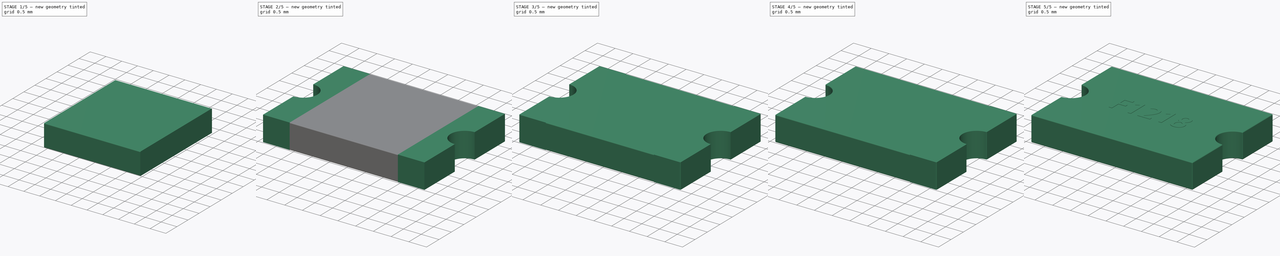
[diagram: build sequence overview — one tinted view per stage of 5, left to right]
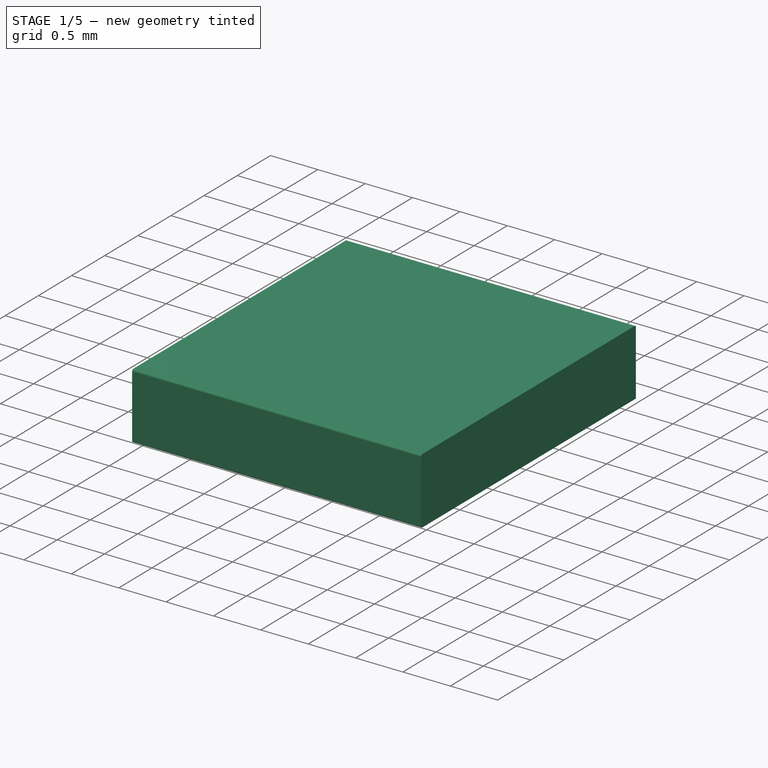
[diagram: stage 1 of 5 — iso view after this stage's code; geometry added in this stage tinted green]
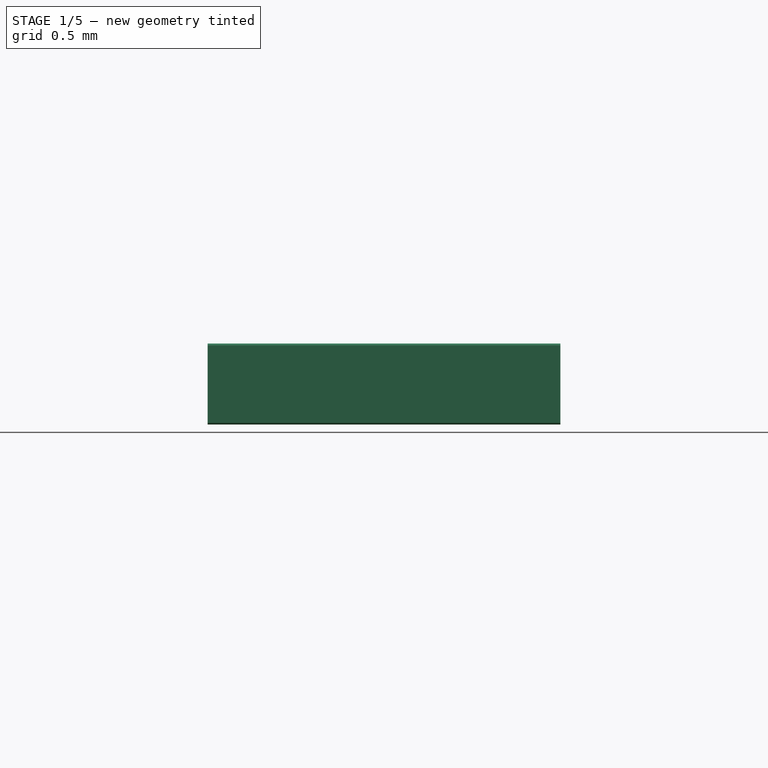
[diagram: stage 1 of 5 — front view after this stage's code; geometry added in this stage tinted green]
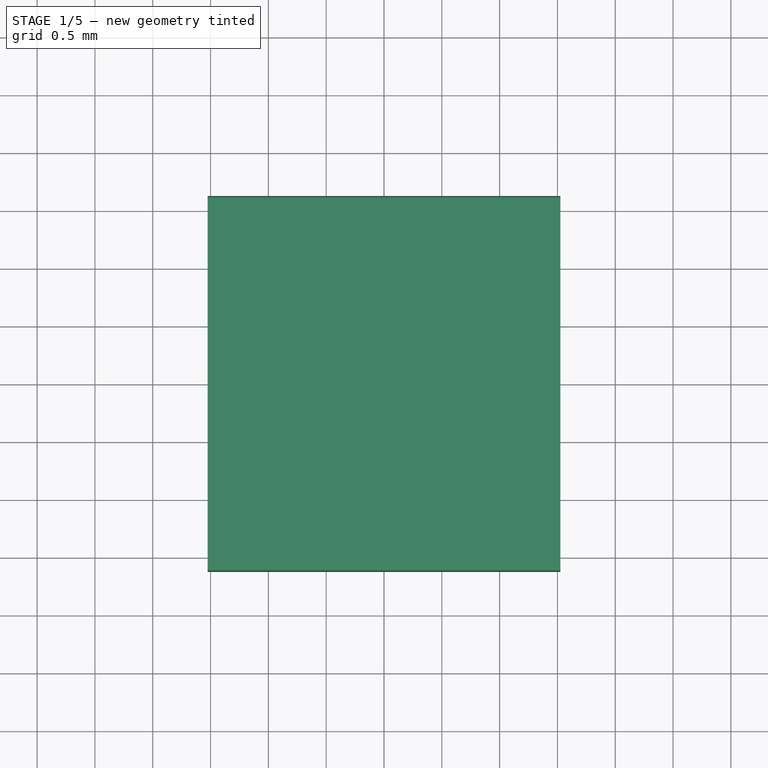
[diagram: stage 1 of 5 — top view after this stage's code; geometry added in this stage tinted green]
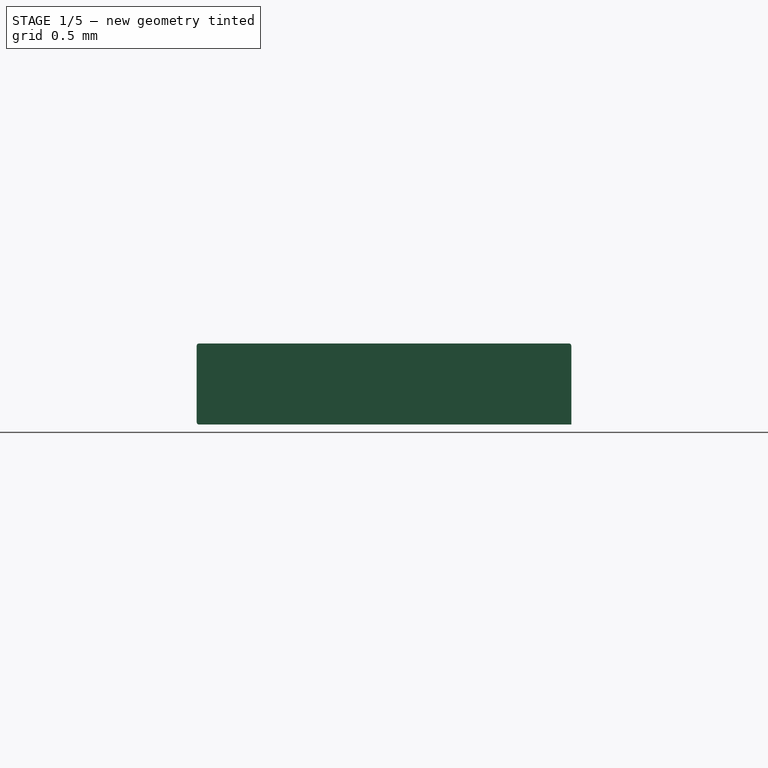
[diagram: stage 1 of 5 — right view after this stage's code; geometry added in this stage tinted green]
FCSTD DOCUMENT  (FreeCAD 0.15R4671 (Git))
Label: PF_1218
License: All rights reserved
LicenseURL: http://en.wikipedia.org/wiki/All_rights_reserved
objects: PartDesign::Fillet×15, PartDesign::Pad×6, Sketcher::SketchObject×5, Part::Part2DObjectPython×1, Part::Cut×1, Part::MultiFuse×1
note: 35 computed .brp shape members not serialized (recipe doc carries the construction recipe); baked Part::Feature solids carry a one-line shape summary decoded from their .brp

FEATURE [Sketcher::SketchObject] Sketch
  sketch-geometry (4):
    g0: LineSegment StartX=-1.525 StartY=1.62 StartZ=0 EndX=1.525 EndY=1.62 EndZ=0
    g1: LineSegment StartX=1.525 StartY=1.62 StartZ=0 EndX=1.525 EndY=-1.62 EndZ=0
    g2: LineSegment StartX=1.525 StartY=-1.62 StartZ=0 EndX=-1.525 EndY=-1.62 EndZ=0
    g3: LineSegment StartX=-1.525 StartY=-1.62 StartZ=0 EndX=-1.525 EndY=1.62 EndZ=0
  constraints (11):
    c: Coincident(g0,g1)
    c: Coincident(g1,g2)
    c: Coincident(g2,g3)
    c: Coincident(g3,g0)
    c: Horizontal(g0)
    c: Horizontal(g2)
    c: Vertical(g1)
    c: Vertical(g3)
    c: Symmetric(g0,g1,g-1)
    c: DistanceX(g0) = 3.05
    c: DistanceY(g1) = -3.24
FEATURE [PartDesign::Pad] Pad
  Length = 0.6
  Length2 = 100
  Sketch = -> Sketch
  Type = 0
FEATURE [Sketcher::SketchObject] Sketch002
  Placement = pos=(0,0,0.6) rot=(0,0,1;0rad)
  sketch-geometry (4):
    g0: LineSegment StartX=-1.525 StartY=1.62 StartZ=0 EndX=1.525 EndY=1.62 EndZ=0
    g1: LineSegment StartX=1.525 StartY=1.62 StartZ=0 EndX=1.525 EndY=-1.62 EndZ=0
    g2: LineSegment StartX=1.525 StartY=-1.62 StartZ=0 EndX=-1.525 EndY=-1.62 EndZ=0
    g3: LineSegment StartX=-1.525 StartY=-1.62 StartZ=0 EndX=-1.525 EndY=1.62 EndZ=0
  constraints (11):
    c: Coincident(g0,g1)
    c: Coincident(g1,g2)
    c: Coincident(g2,g3)
    c: Coincident(g3,g0)
    c: Horizontal(g0)
    c: Horizontal(g2)
    c: Vertical(g1)
    c: Vertical(g3)
    c: Symmetric(g0,g1,g-1)
    c: DistanceX(g0) = 3.05
    c: DistanceY(g1) = -3.24
FEATURE [PartDesign::Pad] Pad002
  Length = 0.1
  Length2 = 100
  Placement = pos=(0,0,0.6) rot=(0,0,1;0rad)
  Sketch = -> Sketch002
  Type = 0
FEATURE [PartDesign::Fillet] Fillet011
  Base = -> Pad [Edge9]
  Radius = 0.02
FEATURE [PartDesign::Fillet] Fillet013
  Base = -> Pad002 [Edge10]
  Placement = pos=(0,0,0.6) rot=(0,0,1;0rad)
  Radius = 0.02
FEATURE [PartDesign::Fillet] Fillet014  label="TOP"
  Base = -> Fillet013 [Edge13]
  Placement = pos=(0,0,0.6) rot=(0,0,1;0rad)
  Radius = 0.02
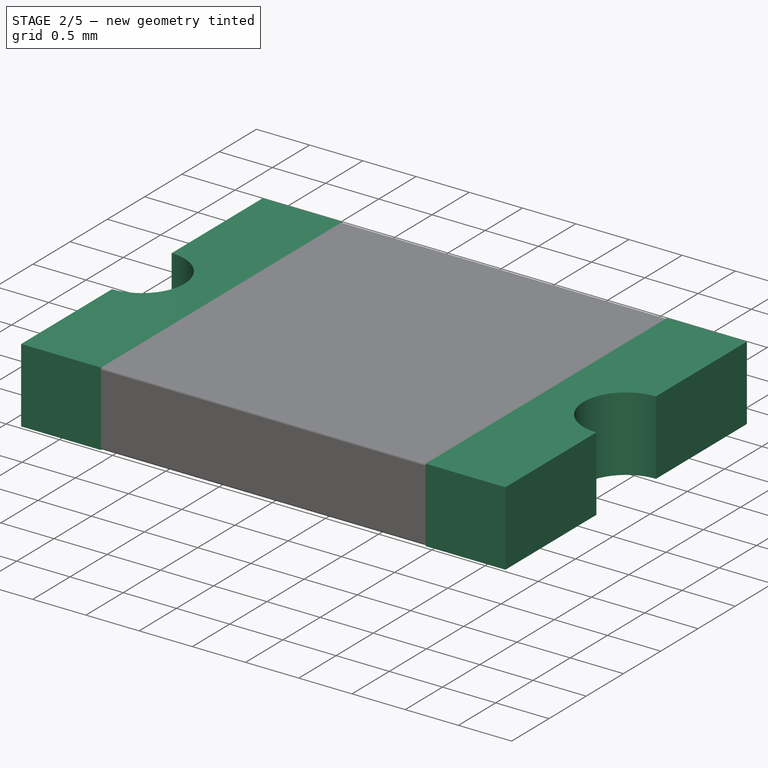
[diagram: stage 2 of 5 — iso view after this stage's code; geometry added in this stage tinted green]
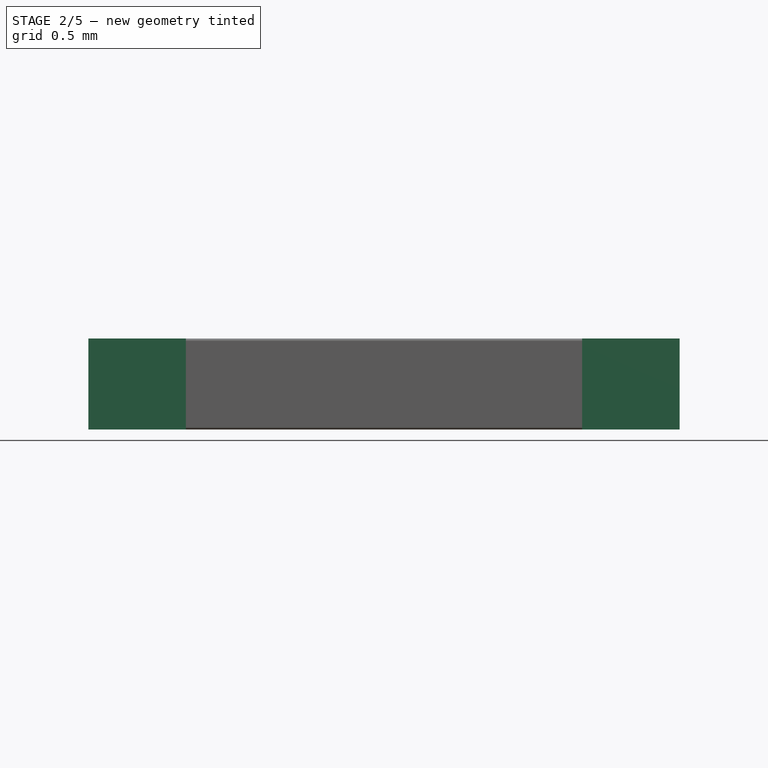
[diagram: stage 2 of 5 — front view after this stage's code; geometry added in this stage tinted green]
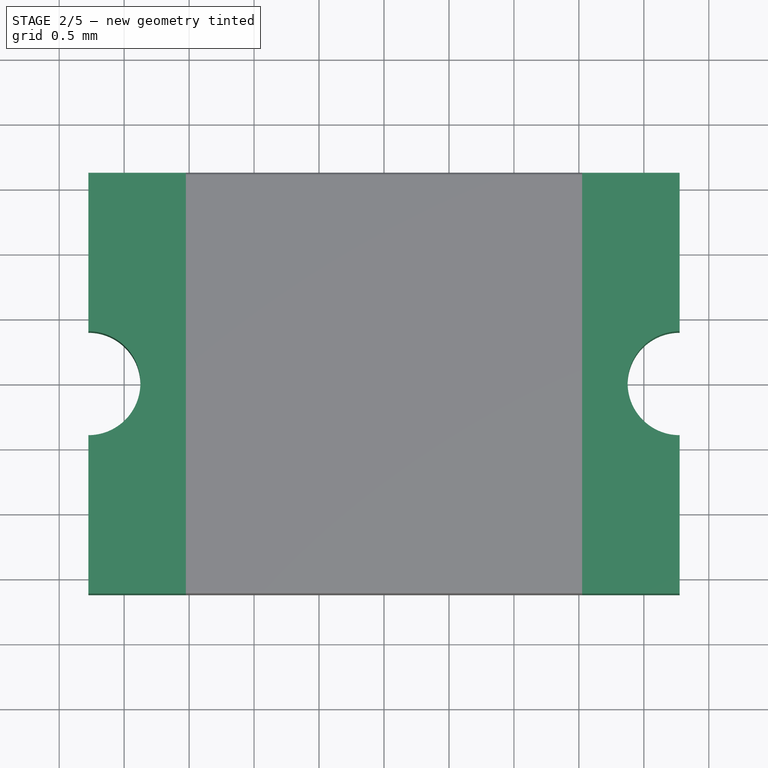
[diagram: stage 2 of 5 — top view after this stage's code; geometry added in this stage tinted green]
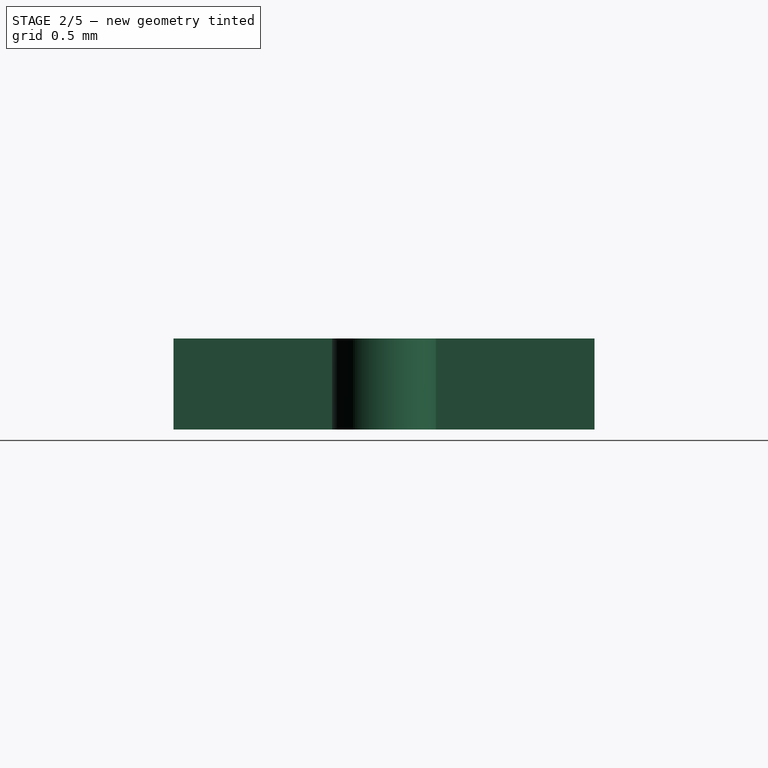
[diagram: stage 2 of 5 — right view after this stage's code; geometry added in this stage tinted green]
FEATURE [Sketcher::SketchObject] Sketch001
  sketch-geometry (6):
    g0: LineSegment StartX=-2.275 StartY=1.62 StartZ=0 EndX=-1.525 EndY=1.62 EndZ=0
    g1: LineSegment StartX=-1.525 StartY=1.62 StartZ=0 EndX=-1.525 EndY=-1.62 EndZ=0
    g2: LineSegment StartX=-1.525 StartY=-1.62 StartZ=0 EndX=-2.275 EndY=-1.62 EndZ=0
    g3: ArcOfCircle CenterX=-2.275 CenterY=0 CenterZ=0 NormalX=0 NormalY=0 NormalZ=1 Radius=0.4 StartAngle=4.71239 EndAngle=7.85398
    g4: LineSegment StartX=-2.275 StartY=0.4 StartZ=0 EndX=-2.275 EndY=1.62 EndZ=0
    g5: LineSegment StartX=-2.275 StartY=-0.4 StartZ=0 EndX=-2.275 EndY=-1.62 EndZ=0
  constraints (19):
    c: Coincident(g0,g1)
    c: Coincident(g1,g2)
    c: Horizontal(g0)
    c: Horizontal(g2)
    c: Vertical(g1)
    c: Symmetric(g0,g1,g-1)
    c: DistanceY(g1) = -3.24
    c: DistanceX(g0) = 0.75
    c: Radius(g3) = 0.4
    c: PointOnObject(g3,g-1)
    c: Coincident(g4,g3)
    c: Coincident(g4,g0)
    c: Vertical(g4)
    c: Coincident(g5,g3)
    c: Coincident(g5,g2)
    c: Vertical(g5)
    c: DistanceX(g-1,g1) = -1.525
    c: Equal(g2,g0)
    c: DistanceX(g3,g3) = 0
FEATURE [PartDesign::Pad] Pad001
  Length = 0.7
  Length2 = 100
  Sketch = -> Sketch001
  Type = 0
FEATURE [Sketcher::SketchObject] Sketch003
  Placement = pos=(0,0,0) rot=(0,0,1;3.14159rad)
  sketch-geometry (6):
    g0: LineSegment StartX=-2.275 StartY=1.62 StartZ=0 EndX=-1.525 EndY=1.62 EndZ=0
    g1: LineSegment StartX=-1.525 StartY=1.62 StartZ=0 EndX=-1.525 EndY=-1.62 EndZ=0
    g2: LineSegment StartX=-1.525 StartY=-1.62 StartZ=0 EndX=-2.275 EndY=-1.62 EndZ=0
    g3: ArcOfCircle CenterX=-2.275 CenterY=0 CenterZ=0 NormalX=0 NormalY=0 NormalZ=1 Radius=0.4 StartAngle=4.71239 EndAngle=7.85398
    g4: LineSegment StartX=-2.275 StartY=0.4 StartZ=0 EndX=-2.275 EndY=1.62 EndZ=0
    g5: LineSegment StartX=-2.275 StartY=-0.4 StartZ=0 EndX=-2.275 EndY=-1.62 EndZ=0
  constraints (19):
    c: Coincident(g0,g1)
    c: Coincident(g1,g2)
    c: Horizontal(g0)
    c: Horizontal(g2)
    c: Vertical(g1)
    c: Symmetric(g0,g1,g-1)
    c: DistanceY(g1) = -3.24
    c: DistanceX(g0) = 0.75
    c: Radius(g3) = 0.4
    c: PointOnObject(g3,g-1)
    c: Coincident(g4,g3)
    c: Coincident(g4,g0)
    c: Vertical(g4)
    c: Coincident(g5,g3)
    c: Coincident(g5,g2)
    c: Vertical(g5)
    c: DistanceX(g-1,g1) = -1.525
    c: Equal(g2,g0)
    c: DistanceX(g3,g3) = 0
FEATURE [PartDesign::Pad] Pad003
  Length = 0.7
  Length2 = 100
  Placement = pos=(0,0,0) rot=(0,0,1;3.14159rad)
  Sketch = -> Sketch003
  Type = 0
FEATURE [Part::MultiFuse] Fusion
  Shapes = -> [Pad001,Pad003]
FEATURE [PartDesign::Fillet] Fillet012  label="BODY"
  Base = -> Fillet011 [Edge13]
  Radius = 0.02
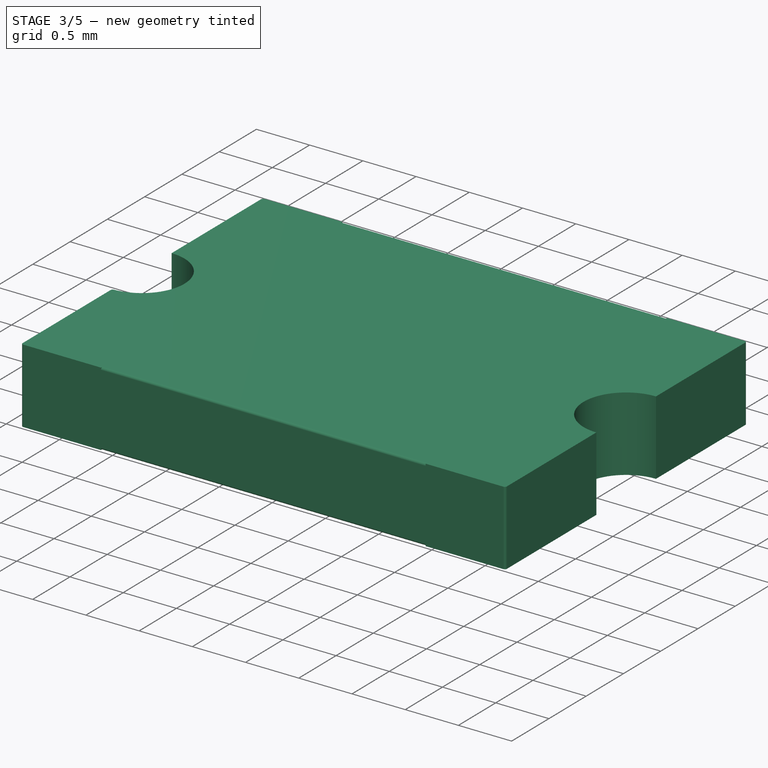
[diagram: stage 3 of 5 — iso view after this stage's code; geometry added in this stage tinted green]
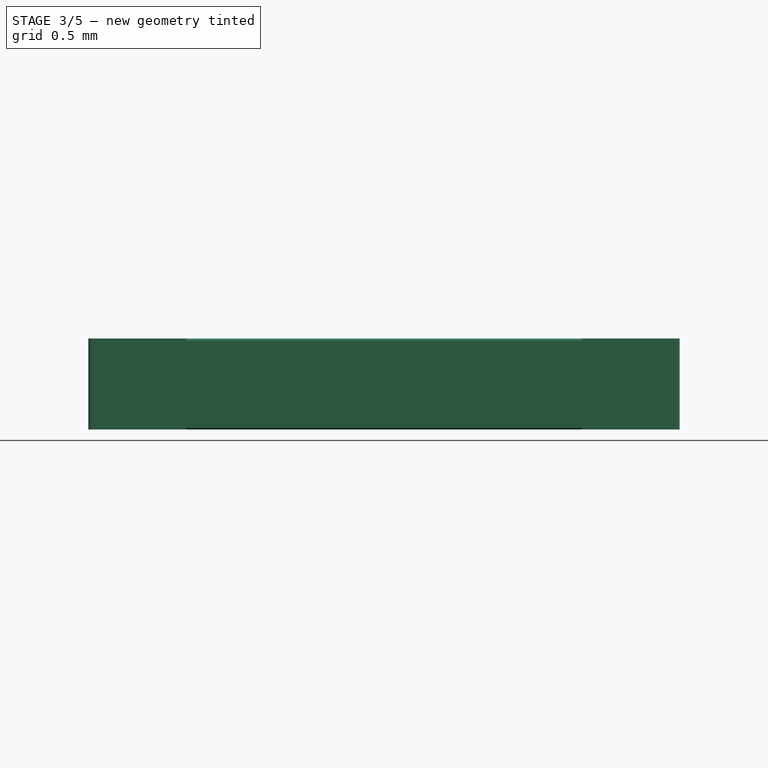
[diagram: stage 3 of 5 — front view after this stage's code; geometry added in this stage tinted green]
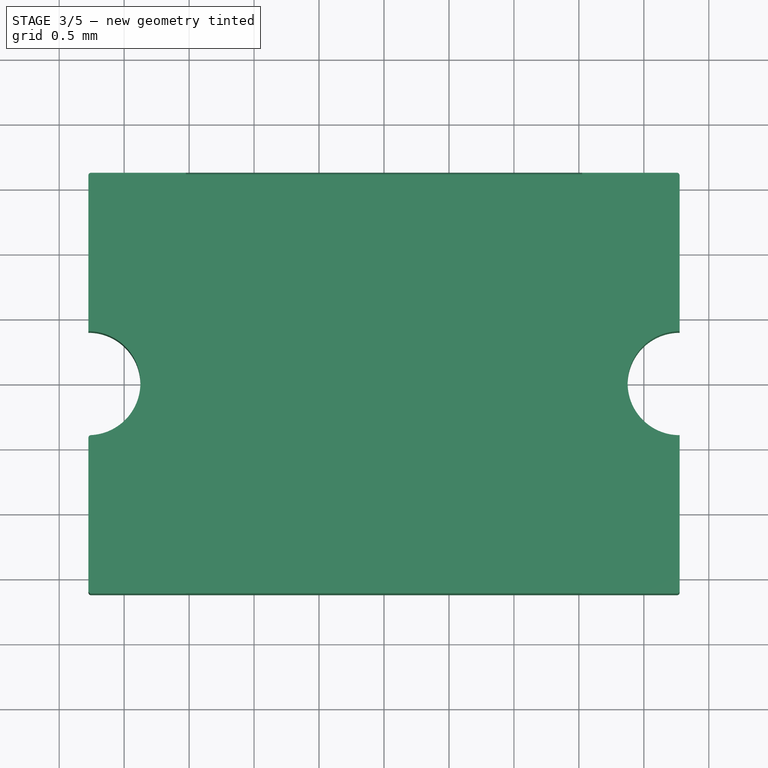
[diagram: stage 3 of 5 — top view after this stage's code; geometry added in this stage tinted green]
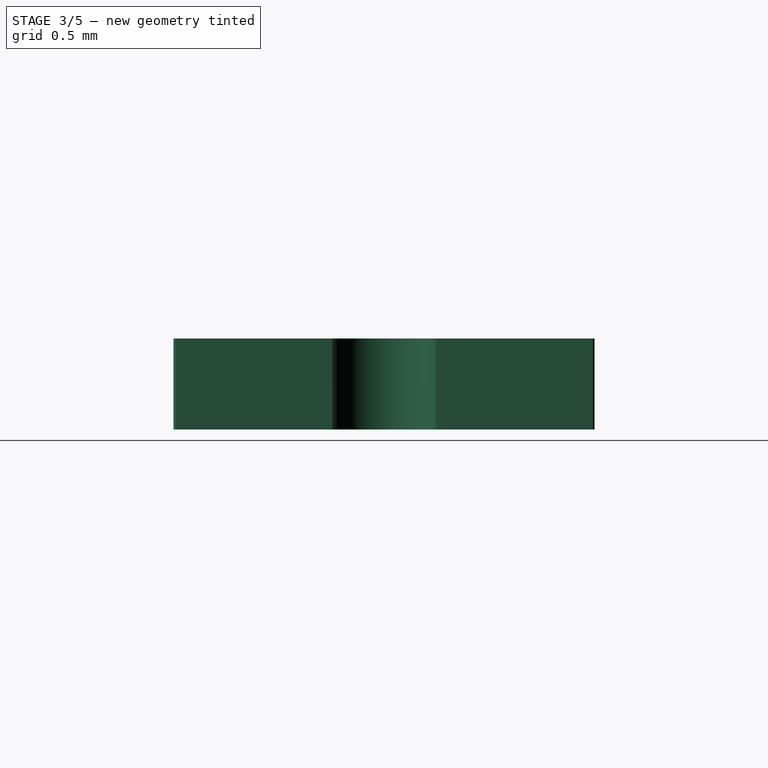
[diagram: stage 3 of 5 — right view after this stage's code; geometry added in this stage tinted green]
FEATURE [PartDesign::Fillet] Fillet
  Base = -> Fusion [Edge32]
  Radius = 0.02
FEATURE [PartDesign::Fillet] Fillet001
  Base = -> Fillet [Edge20]
  Radius = 0.02
FEATURE [PartDesign::Fillet] Fillet002
  Base = -> Fillet001 [Edge29]
  Radius = 0.02
FEATURE [PartDesign::Fillet] Fillet003
  Base = -> Fillet002 [Edge20]
  Radius = 0.02
FEATURE [PartDesign::Fillet] Fillet004
  Base = -> Fillet003 [Edge44]
  Radius = 0.02
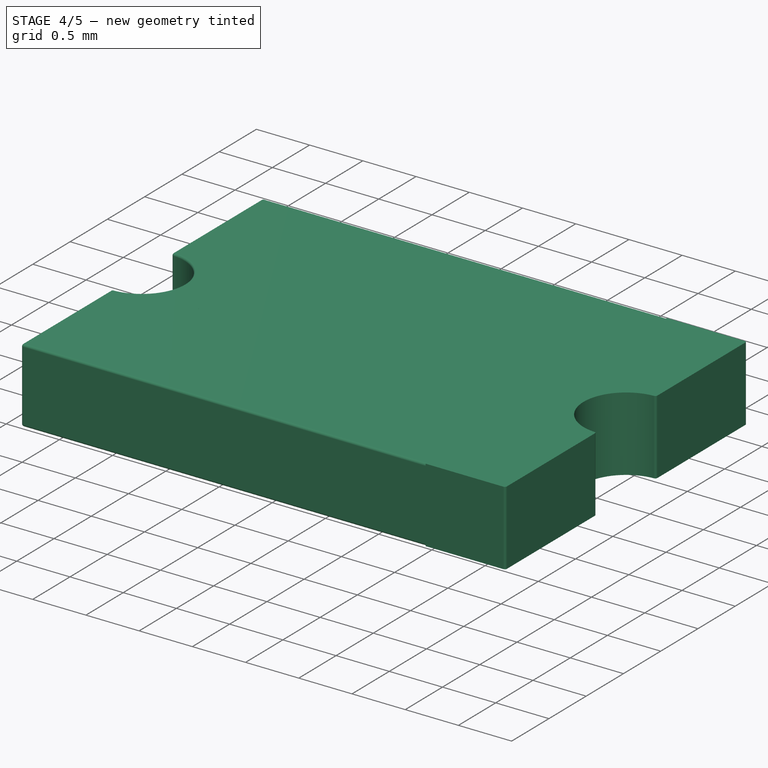
[diagram: stage 4 of 5 — iso view after this stage's code; geometry added in this stage tinted green]
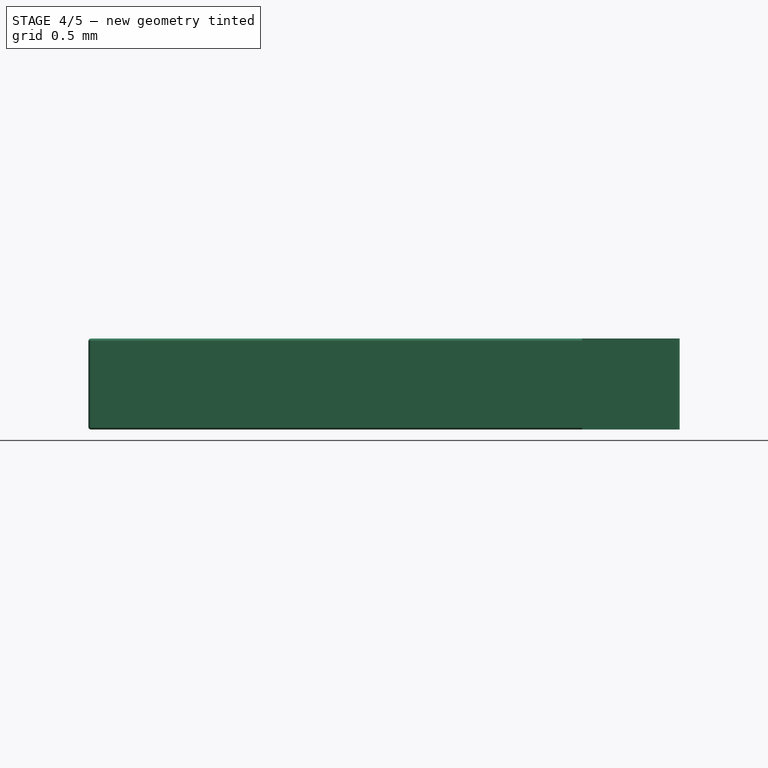
[diagram: stage 4 of 5 — front view after this stage's code; geometry added in this stage tinted green]
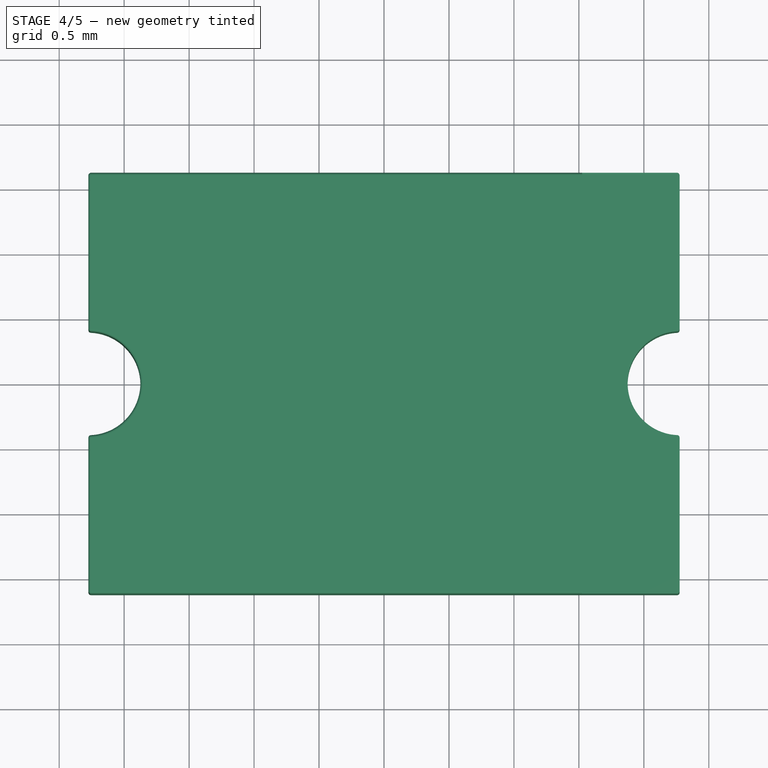
[diagram: stage 4 of 5 — top view after this stage's code; geometry added in this stage tinted green]
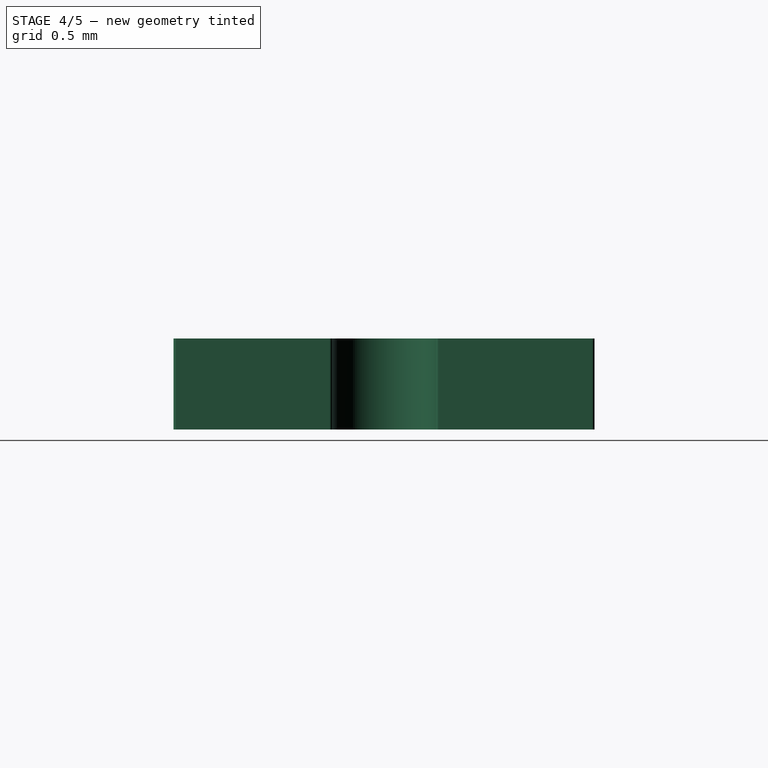
[diagram: stage 4 of 5 — right view after this stage's code; geometry added in this stage tinted green]
FEATURE [PartDesign::Fillet] Fillet005
  Base = -> Fillet004 [Edge11]
  Radius = 0.02
FEATURE [PartDesign::Fillet] Fillet006
  Base = -> Fillet005 [Edge40,Edge44]
  Radius = 0.02
FEATURE [PartDesign::Fillet] Fillet007
  Base = -> Fillet006 [Edge59]
  Radius = 0.02
FEATURE [PartDesign::Fillet] Fillet008
  Base = -> Fillet007 [Edge17]
  Radius = 0.02
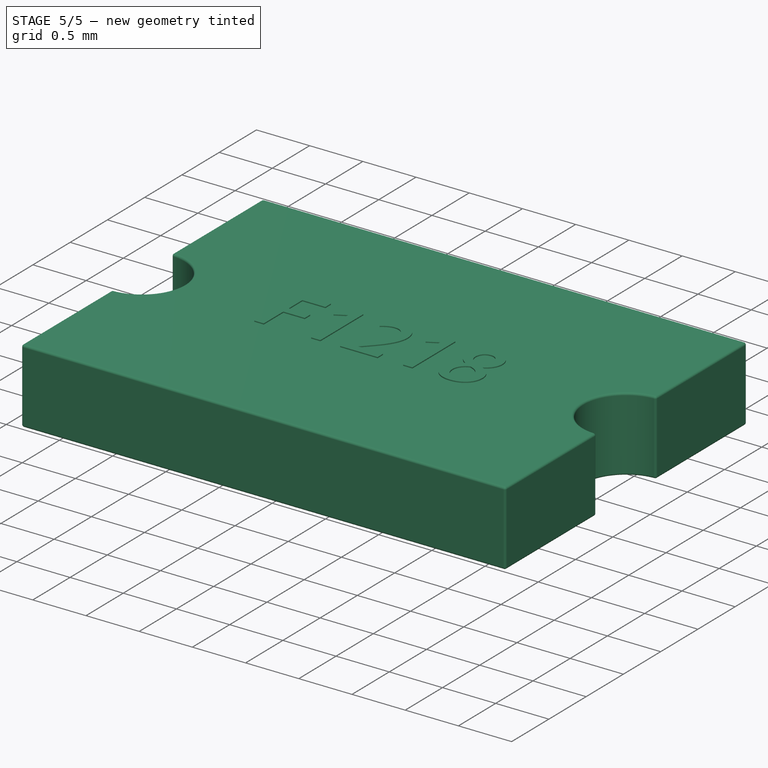
[diagram: stage 5 of 5 — iso view after this stage's code; geometry added in this stage tinted green]
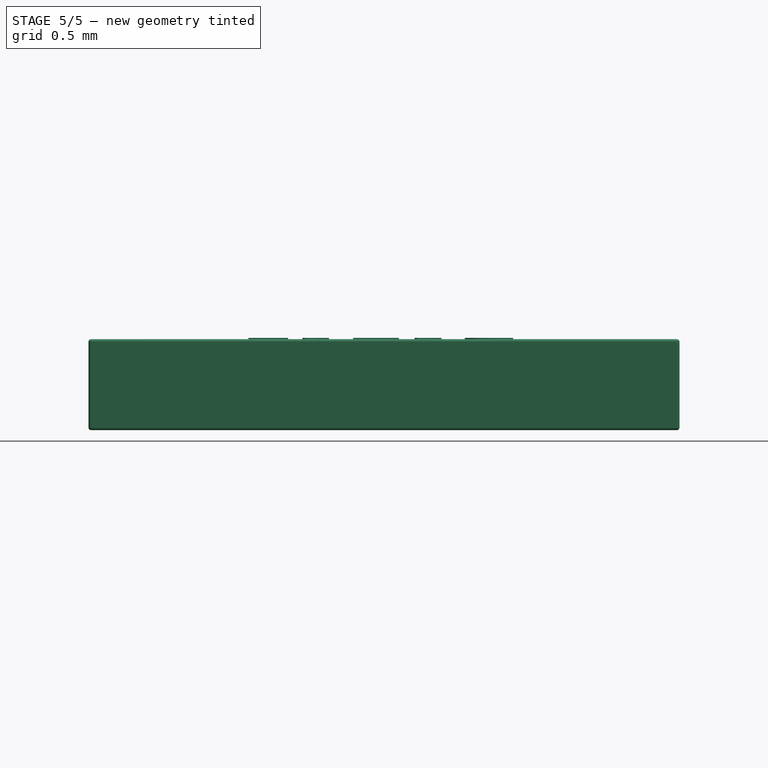
[diagram: stage 5 of 5 — front view after this stage's code; geometry added in this stage tinted green]
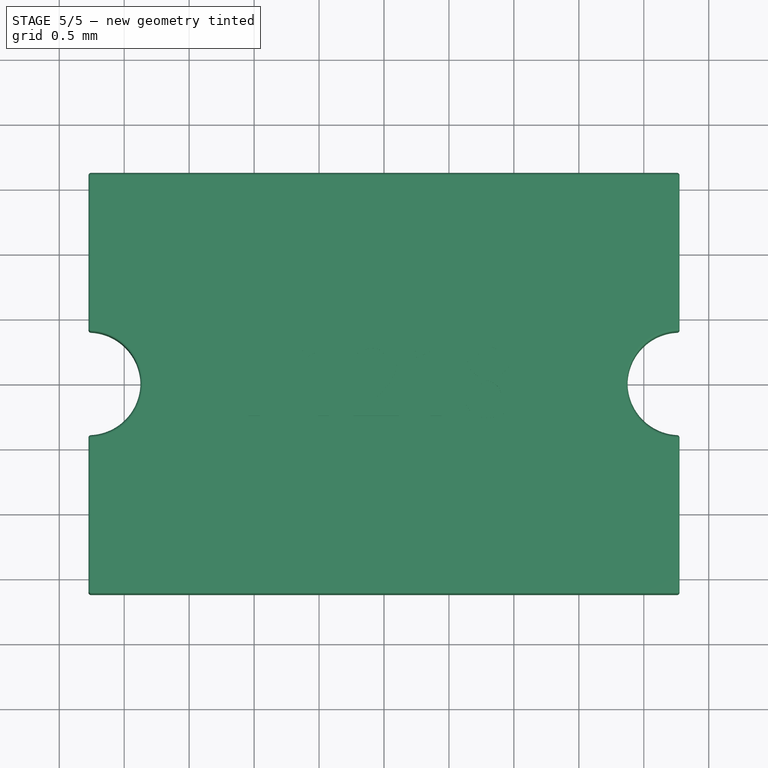
[diagram: stage 5 of 5 — top view after this stage's code; geometry added in this stage tinted green]
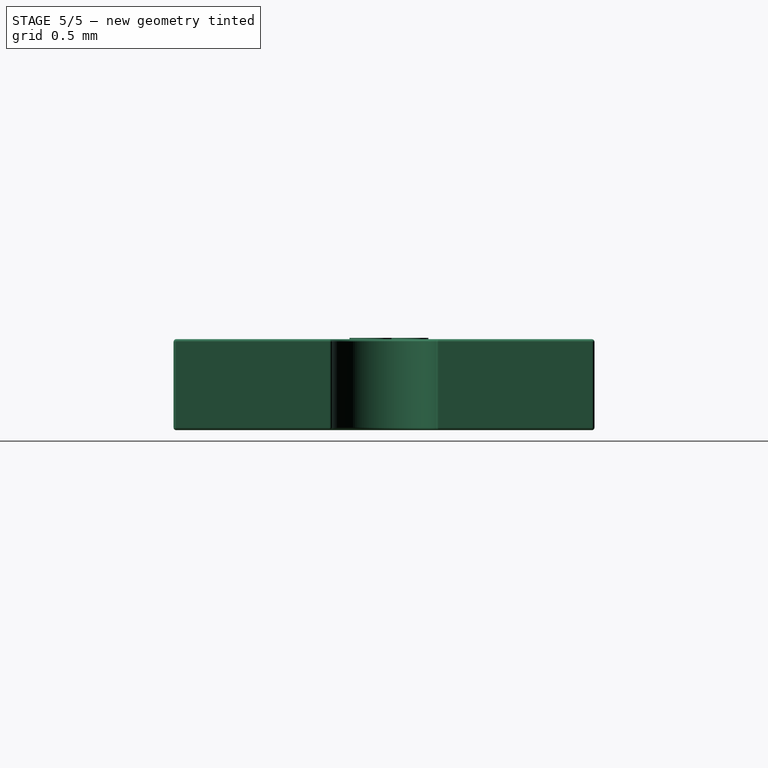
[diagram: stage 5 of 5 — right view after this stage's code; geometry added in this stage tinted green]
FEATURE [Part::Part2DObjectPython] ShapeString  # Draft 2D object (typed FeaturePython)
  FontFile = <userpath>/Documents/KiCad Custom Sch/PolyFuse3d/CAD/AdobeFanHeitiStd-Bold.otf
  Placement = pos=(-1.105,-0.25,0.7) rot=(0,0,1;0rad)
  Size = 0.5
  String = F1218
  Support = -> Pad002
  Tracking = 1
FEATURE [PartDesign::Pad] Pad004
  Length = 0.01
  Length2 = 100
  Placement = pos=(0,0,0.6) rot=(0,0,1;0rad)
  Sketch = -> ShapeString
  Type = 0
FEATURE [Sketcher::SketchObject] Sketch004
  Placement = pos=(0,0,0.6) rot=(0,0,1;0rad)
  sketch-geometry (4):
    g0: LineSegment StartX=-1.525 StartY=1.62 StartZ=0 EndX=1.525 EndY=1.62 EndZ=0
    g1: LineSegment StartX=1.525 StartY=1.62 StartZ=0 EndX=1.525 EndY=-1.62 EndZ=0
    g2: LineSegment StartX=1.525 StartY=-1.62 StartZ=0 EndX=-1.525 EndY=-1.62 EndZ=0
    g3: LineSegment StartX=-1.525 StartY=-1.62 StartZ=0 EndX=-1.525 EndY=1.62 EndZ=0
  constraints (11):
    c: Coincident(g0,g1)
    c: Coincident(g1,g2)
    c: Coincident(g2,g3)
    c: Coincident(g3,g0)
    c: Horizontal(g0)
    c: Horizontal(g2)
    c: Vertical(g1)
    c: Vertical(g3)
    c: Symmetric(g0,g1,g-1)
    c: DistanceX(g0) = 3.05
    c: DistanceY(g1) = -3.24
FEATURE [PartDesign::Pad] Pad005
  Length = 0.1
  Length2 = 100
  Placement = pos=(0,0,0.6) rot=(0,0,1;0rad)
  Sketch = -> Sketch004
  Type = 0
FEATURE [Part::Cut] Cut  label="TEXT"
  Base = -> Pad004
  Tool = -> Pad005
FEATURE [PartDesign::Fillet] Fillet009
  Base = -> Fillet008 [Edge97]
  Radius = 0.02
FEATURE [PartDesign::Fillet] Fillet010  label="PADS"
  Base = -> Fillet009 [Edge17]
  Radius = 0.02
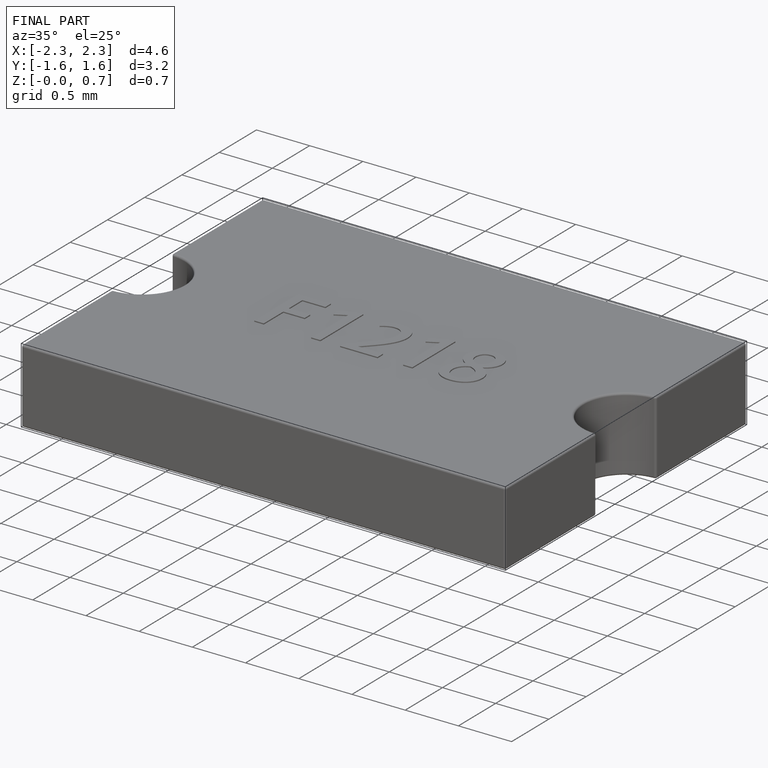
[diagram: finished part — iso view with bounding-box wireframe]
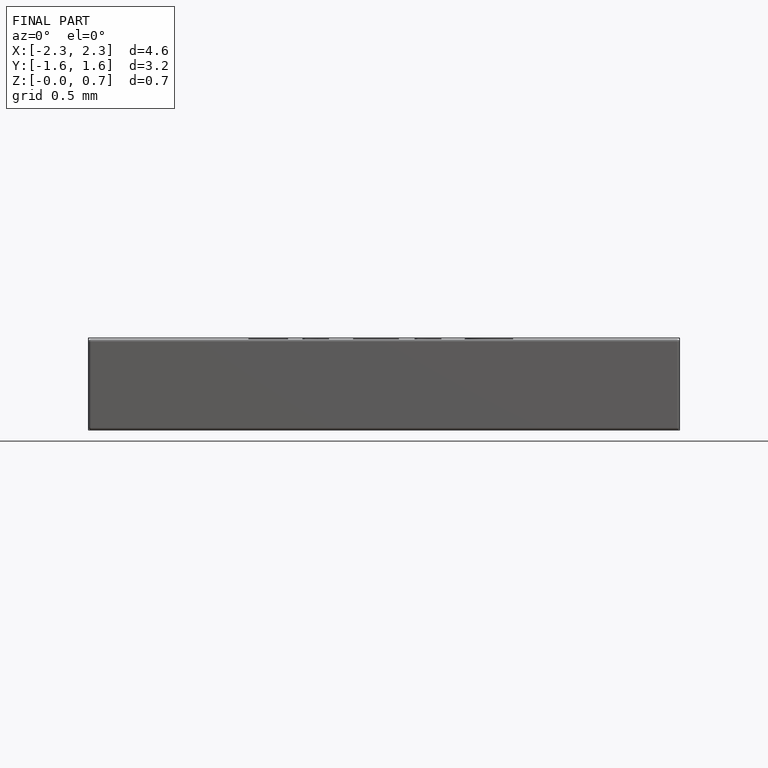
[diagram: finished part — front view with bounding-box wireframe]
